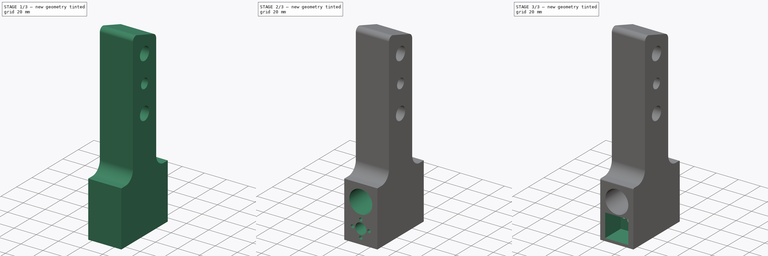
[diagram: build sequence overview — one tinted view per stage of 3, left to right]
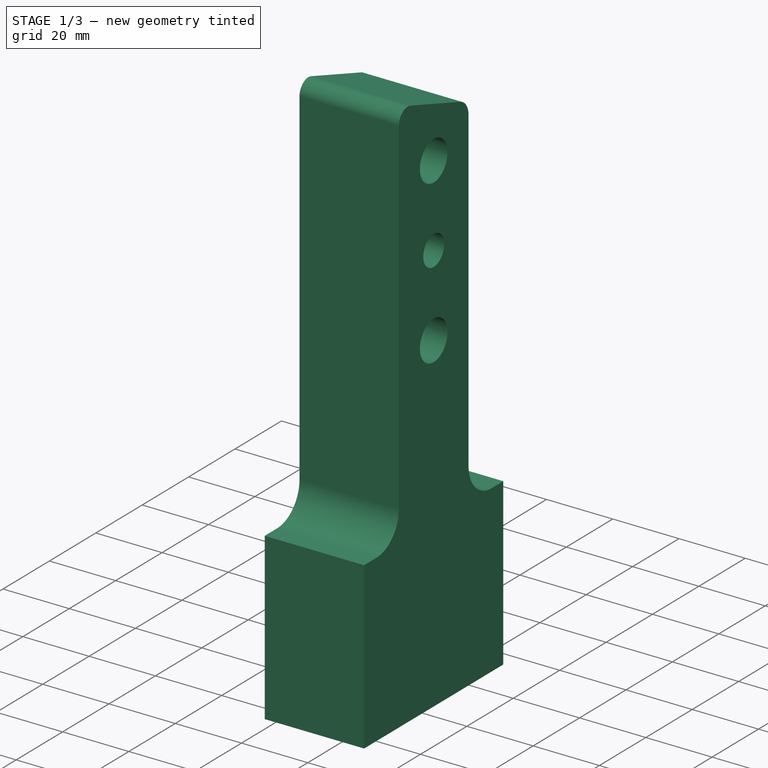
[diagram: stage 1 of 3 — iso view after this stage's code; geometry added in this stage tinted green]
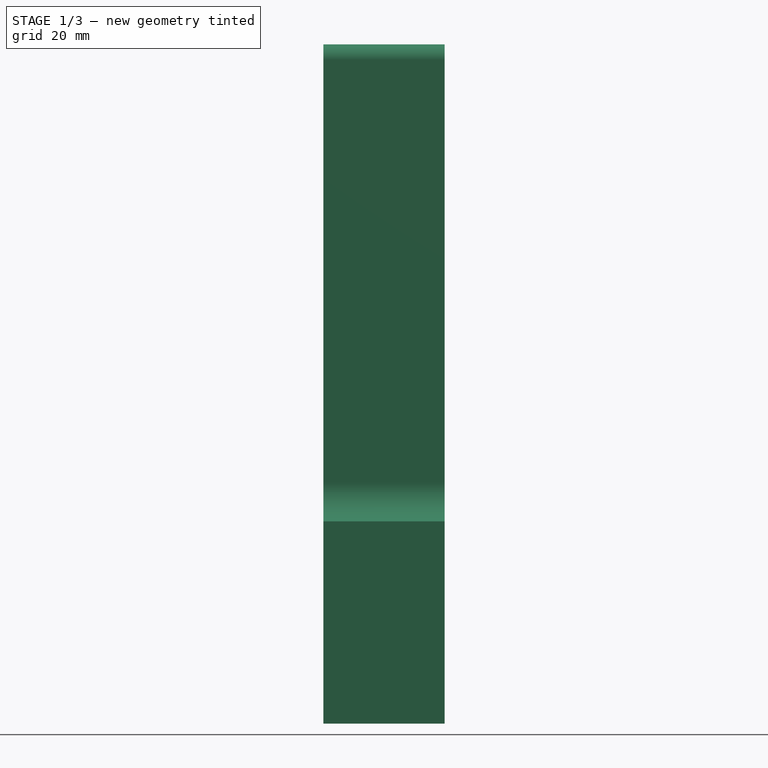
[diagram: stage 1 of 3 — front view after this stage's code; geometry added in this stage tinted green]
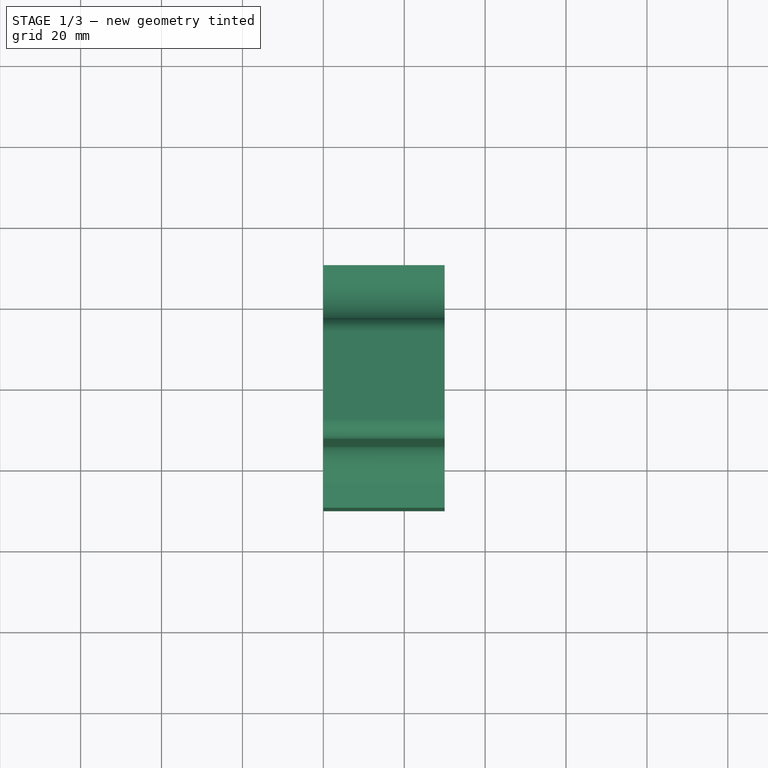
[diagram: stage 1 of 3 — top view after this stage's code; geometry added in this stage tinted green]
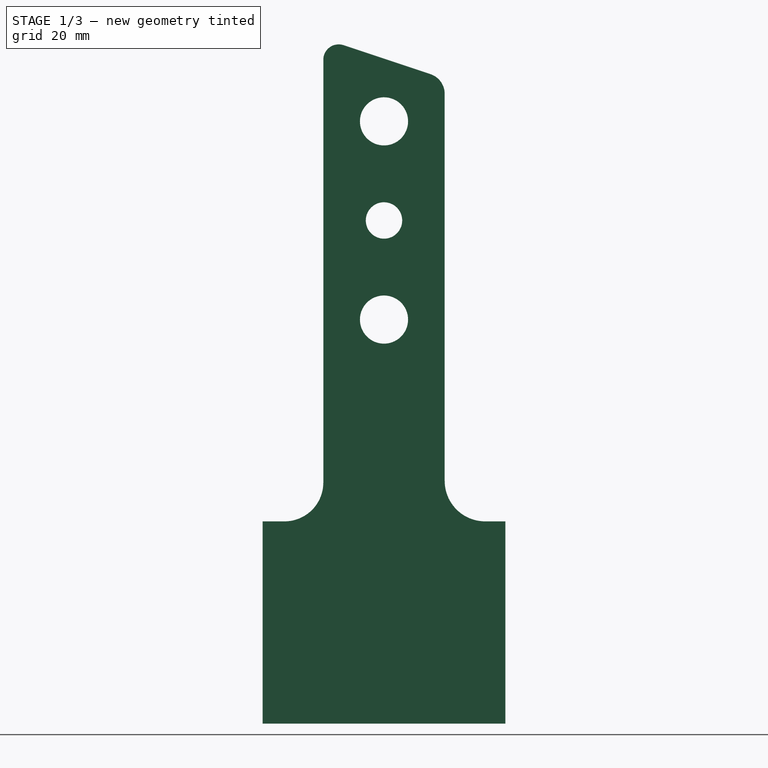
[diagram: stage 1 of 3 — right view after this stage's code; geometry added in this stage tinted green]
FCSTD DOCUMENT  (FreeCAD 0.18R4 (GitTag))
Label: axe-y-v2
License: All rights reserved
LicenseURL: http://en.wikipedia.org/wiki/All_rights_reserved
objects: Sketcher::SketchObject×4, PartDesign::Pocket×3, PartDesign::Pad×1, PartDesign::Fillet×1, PartDesign::Body×1
note: 14 computed .brp shape members not serialized (recipe doc carries the construction recipe); baked Part::Feature solids carry a one-line shape summary decoded from their .brp

FEATURE [Sketcher::SketchObject] Sketch
  MapMode = 5
  Placement = pos=(0,0,0) rot=(0.57735,0.57735,0.57735;2.0944rad)
  Support = -> [YZ_Plane]
  sketch-geometry (22):
    g0: LineSegment [constr] StartX=-15 StartY=45 StartZ=0 EndX=15 EndY=45 EndZ=0
    g1: LineSegment [constr] StartX=15 StartY=45 StartZ=0 EndX=15 EndY=-45 EndZ=0
    g2: LineSegment [constr] StartX=15 StartY=-45 StartZ=0 EndX=-15 EndY=-45 EndZ=0
    g3: LineSegment [constr] StartX=-15 StartY=-45 StartZ=0 EndX=-15 EndY=45 EndZ=0
    g4: LineSegment [constr] StartX=-1e-16 StartY=45 StartZ=0 EndX=-1e-16 EndY=-45 EndZ=0
    g5: Circle CenterX=-1e-16 CenterY=24.5 CenterZ=0 NormalX=0 NormalY=0 NormalZ=1 AngleXU=0 Radius=5.95
    g6: Circle CenterX=-1e-16 CenterY=-24.5 CenterZ=0 NormalX=0 NormalY=0 NormalZ=1 AngleXU=0 Radius=5.95
    g7: LineSegment StartX=-15 StartY=39.738 StartZ=0 EndX=-15 EndY=-45 EndZ=0
    g8: LineSegment StartX=-15 StartY=-45 StartZ=0 EndX=-15 EndY=-64.7958 EndZ=0
    g9: LineSegment StartX=-24.5874 StartY=-74.3831 StartZ=0 EndX=-30 EndY=-74.3831 EndZ=0
    g10: LineSegment StartX=-30 StartY=-74.3831 StartZ=0 EndX=-30 EndY=-124.383 EndZ=0
    g11: LineSegment StartX=-30 StartY=-124.383 StartZ=0 EndX=30 EndY=-124.383 EndZ=0
    g12: LineSegment StartX=30 StartY=-124.383 StartZ=0 EndX=30 EndY=-74.3831 EndZ=0
    g13: LineSegment StartX=30 StartY=-74.3831 StartZ=0 EndX=25.0052 EndY=-74.3831 EndZ=0
    g14: LineSegment StartX=11.4874 StartY=36.1709 StartZ=0 EndX=-10.0081 EndY=43.336 EndZ=0
    g15: LineSegment StartX=15 StartY=31.2974 StartZ=0 EndX=15 EndY=-45 EndZ=0
    g16: LineSegment StartX=15 StartY=-45 StartZ=0 EndX=15 EndY=-64.3779 EndZ=0
    g17: ArcOfCircle CenterX=-24.5874 CenterY=-64.7958 CenterZ=0 NormalX=0 NormalY=0 NormalZ=1 AngleXU=0 Radius=9.58738 StartAngle=4.71239 EndAngle=6.28319
    g18: ArcOfCircle CenterX=25.0052 CenterY=-64.3779 CenterZ=0 NormalX=0 NormalY=0 NormalZ=1 AngleXU=0 Radius=10.0052 StartAngle=3.14159 EndAngle=4.71239
    g19: ArcOfCircle CenterX=-11.2074 CenterY=39.738 CenterZ=0 NormalX=0 NormalY=0 NormalZ=1 AngleXU=0 Radius=3.79262 StartAngle=1.24905 EndAngle=3.14159
    g20: ArcOfCircle CenterX=9.86288 CenterY=31.2974 CenterZ=0 NormalX=0 NormalY=0 NormalZ=1 AngleXU=0 Radius=5.13712 StartAngle=0 EndAngle=1.24905
    g21: Circle CenterX=0 CenterY=0 CenterZ=0 NormalX=0 NormalY=0 NormalZ=1 AngleXU=0 Radius=4.5
  constraints (48):
    c: Coincident(g0,g1)
    c: Coincident(g1,g2)
    c: Coincident(g2,g3)
    c: Coincident(g3,g0)
    c: Horizontal(g0)
    c: Horizontal(g2)
    c: Vertical(g1)
    c: Vertical(g3)
    c: DistanceX(g0,g0) = 30
    c: DistanceY(g1,g1) = 90
    c: Symmetric(g0,g2,g-1)
    c: Vertical(g4)
    c: Symmetric(g0,g0,g4)
    c: PointOnObject(g4,g2)
    c: Equal(g5,g6)
    c: Diameter(g5) = 11.9
    c: DistanceY(g-1,g5) = 24.5
    c: DistanceY(g6,g-1) = 24.5
    c: PointOnObject(g5,g4)
    c: PointOnObject(g6,g4)
    c: Coincident(g7,g8)
    c: Coincident(g9,g10)
    c: Coincident(g10,g11)
    c: Coincident(g11,g12)
    c: Coincident(g12,g13)
    c: Equal(g10,g12)
    c: Vertical(g10)
    c: Vertical(g12)
    c: DistanceY(g12,g12) = 50
    c: Coincident(g15,g16)
    c: Vertical(g8)
    c: Vertical(g16)
    c: DistanceX(g11,g11) = 60
    c: Horizontal(g9)
    c: Horizontal(g13)
    c: Symmetric(g11,g10,g-2)
    c: Coincident(g7,g2)
    c: Coincident(g15,g1)
    c: Tangent(g9,g17) = 1.5708
    c: Tangent(g8,g17) = 1.5708
    c: Tangent(g16,g18) = -1.5708
    c: Tangent(g13,g18) = 1.5708
    c: Tangent(g7,g19) = -1.5708
    c: Tangent(g14,g19) = -1.5708
    c: Tangent(g14,g20) = -1.5708
    c: Tangent(g15,g20) = 1.5708
    c: Diameter(g21) = 9
    c: Coincident(g21,g-1)
FEATURE [PartDesign::Pad] Pad
  Length = 30
  Length2 = 100
  Placement = pos=(0,0,0) rot=(0.57735,0.57735,0.57735;2.0944rad)
  Profile = -> Sketch
  Type = 0
FEATURE [Sketcher::SketchObject] Sketch001
  MapMode = 5
  Placement = pos=(1e-16,0,0) rot=(0.57735,0.57735,-0.57735;4.18879rad)
  Support = -> [Pad]
  sketch-geometry (1):
    g0: Circle CenterX=0 CenterY=0 CenterZ=0 NormalX=0 NormalY=0 NormalZ=1 AngleXU=0 Radius=10.85
  constraints (2):
    c: Coincident(g0,g-1)
    c: Diameter(g0) = 21.7
FEATURE [PartDesign::Pocket] Pocket
  BaseFeature = -> Pad
  Length = 8
  Length2 = 100
  Placement = pos=(0,0,0) rot=(0.57735,0.57735,0.57735;2.0944rad)
  Profile = -> Sketch001
  Type = 0
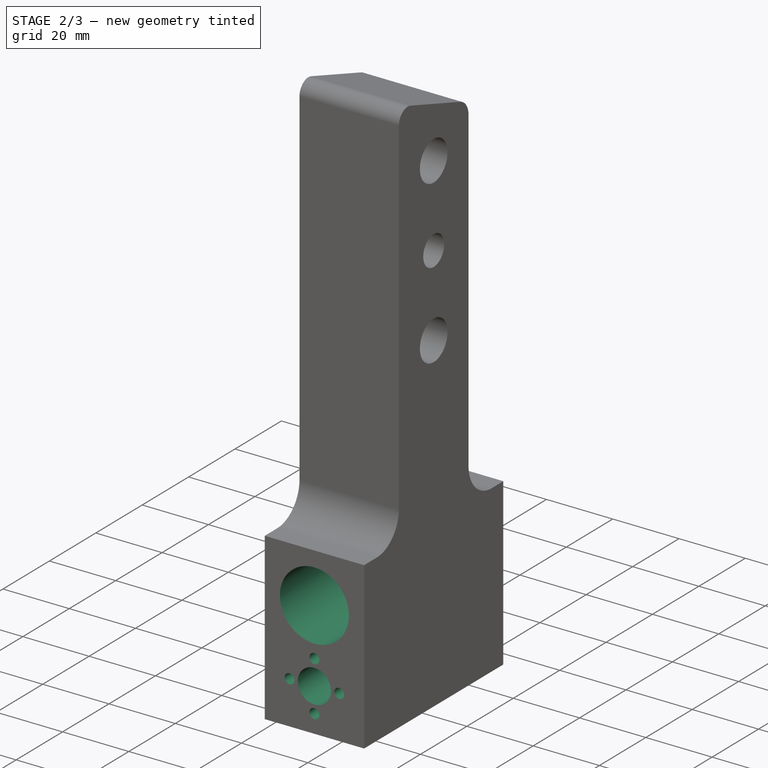
[diagram: stage 2 of 3 — iso view after this stage's code; geometry added in this stage tinted green]
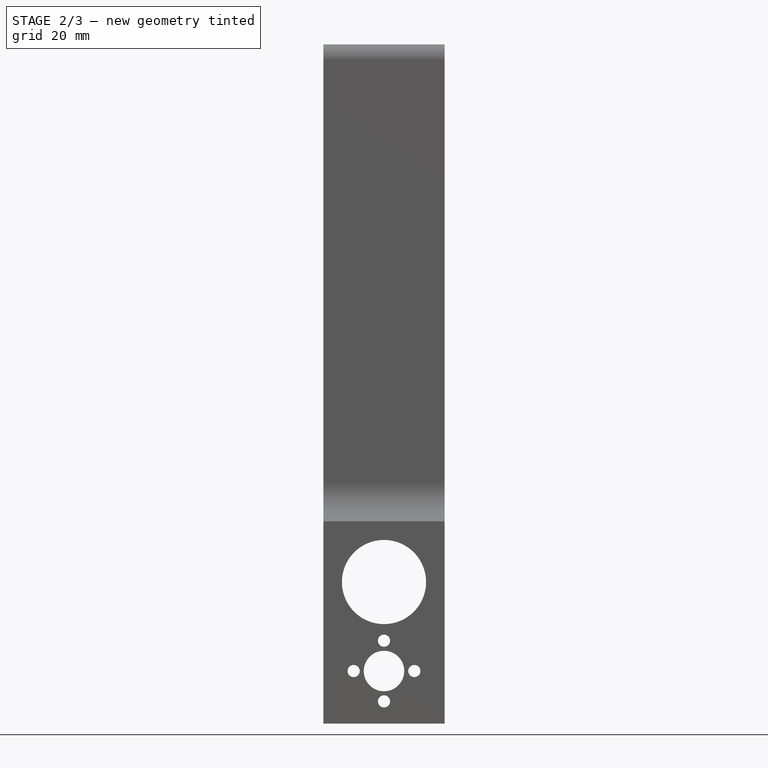
[diagram: stage 2 of 3 — front view after this stage's code; geometry added in this stage tinted green]
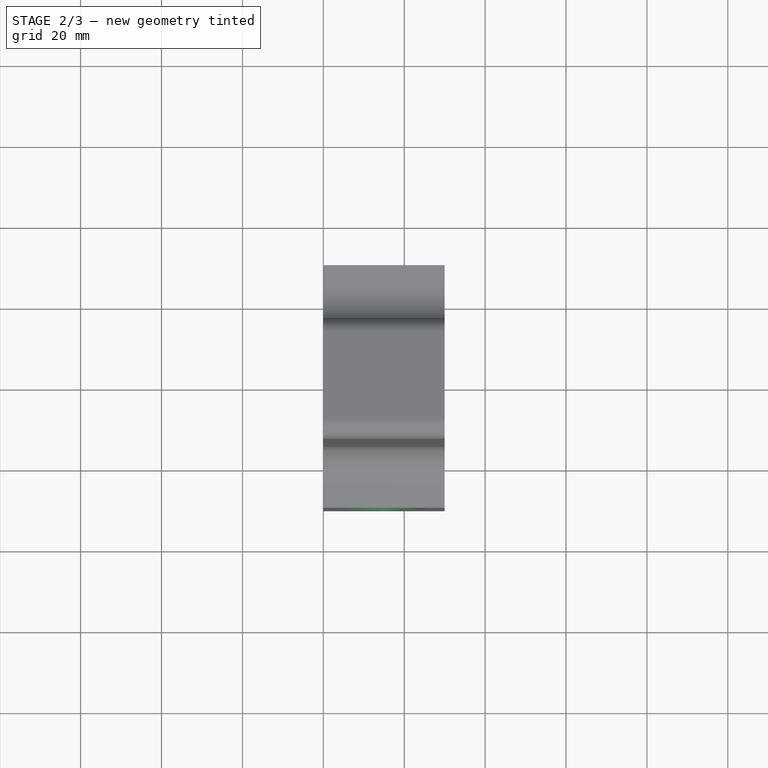
[diagram: stage 2 of 3 — top view after this stage's code; geometry added in this stage tinted green]
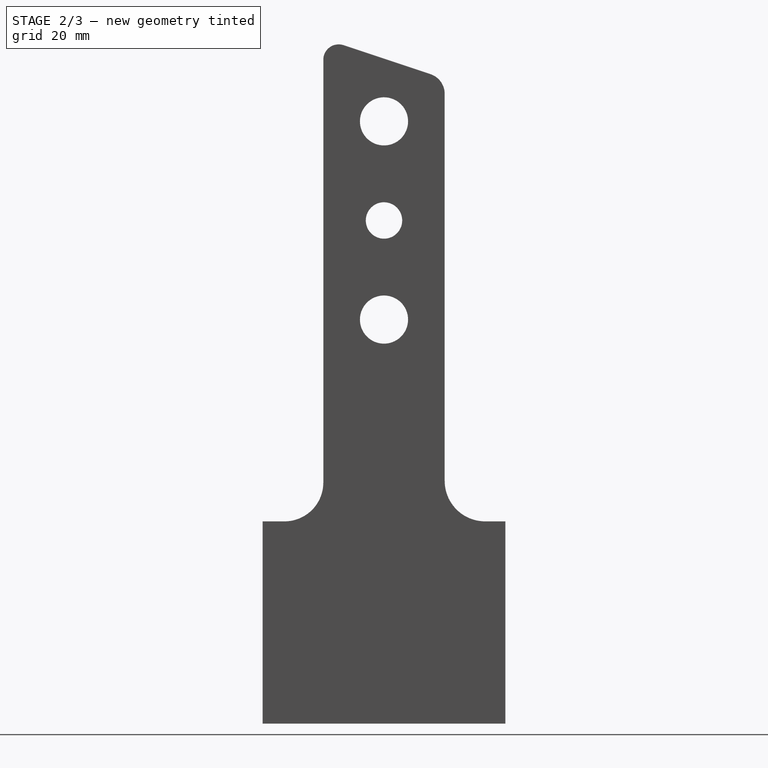
[diagram: stage 2 of 3 — right view after this stage's code; geometry added in this stage tinted green]
FEATURE [Sketcher::SketchObject] Sketch002
  ExternalGeometry = -> [Pocket]
  MapMode = 5
  Placement = pos=(-1.32e-14,-30,6.6e-15) rot=(-0.57735,-0.57735,0.57735;4.18879rad)
  Support = -> [Pocket]
  sketch-geometry (8):
    g0: LineSegment [constr] StartX=72.1621 StartY=14.0376 StartZ=0 EndX=72.1621 EndY=14.1691 EndZ=0
    g1: LineSegment [constr] StartX=74.3831 StartY=15 StartZ=0 EndX=124.383 EndY=15 EndZ=0
    g2: Circle CenterX=89.3831 CenterY=15 CenterZ=0 NormalX=0 NormalY=0 NormalZ=1 AngleXU=0 Radius=10.4
    g3: Circle CenterX=111.383 CenterY=15 CenterZ=0 NormalX=0 NormalY=0 NormalZ=1 AngleXU=0 Radius=5
    g4: Circle CenterX=111.383 CenterY=22.5 CenterZ=0 NormalX=0 NormalY=0 NormalZ=1 AngleXU=0 Radius=1.5
    g5: Circle CenterX=103.883 CenterY=15 CenterZ=0 NormalX=0 NormalY=0 NormalZ=1 AngleXU=0 Radius=1.5
    g6: Circle CenterX=111.383 CenterY=7.5 CenterZ=0 NormalX=0 NormalY=0 NormalZ=1 AngleXU=0 Radius=1.5
    g7: Circle CenterX=118.883 CenterY=15 CenterZ=0 NormalX=0 NormalY=0 NormalZ=1 AngleXU=0 Radius=1.5
  constraints (22):
    c: Vertical(g0)
    c: Horizontal(g1)
    c: Symmetric(g-5,g-6,g1)
    c: PointOnObject(g1,g-4)
    c: Equal(g4,g5)
    c: Equal(g5,g6)
    c: Equal(g6,g7)
    c: Diameter(g4) = 3
    c: DistanceX(g4,g3) = 0
    c: DistanceY(g3,g4) = 7.5
    c: DistanceX(g3,g6) = 0
    c: DistanceY(g6,g3) = 7.5
    c: DistanceY(g3,g7) = 0
    c: DistanceY(g3,g5) = 0
    c: DistanceX(g3,g7) = 7.5
    c: DistanceX(g5,g3) = 7.5
    c: Diameter(g3) = 10
    c: Diameter(g2) = 20.8
    c: PointOnObject(g3,g1)
    c: PointOnObject(g2,g1)
    c: DistanceX(g2,g3) = 22
    c: DistanceX(g-5,g2) = 15
FEATURE [PartDesign::Pocket] Pocket001
  BaseFeature = -> Pocket
  Length = 60
  Length2 = 100
  Placement = pos=(0,0,0) rot=(0.57735,0.57735,0.57735;2.0944rad)
  Profile = -> Sketch002
  Type = 0
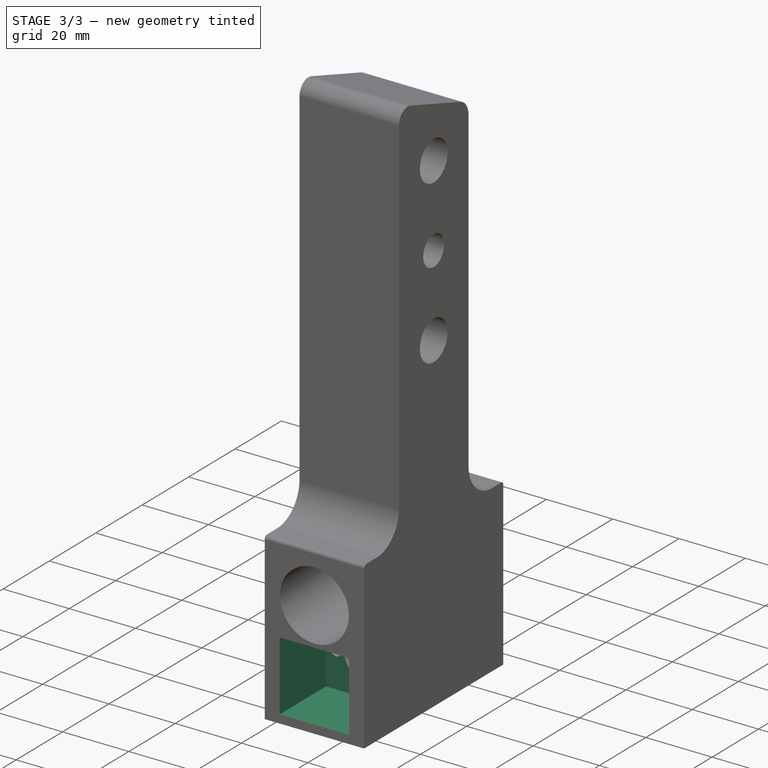
[diagram: stage 3 of 3 — iso view after this stage's code; geometry added in this stage tinted green]
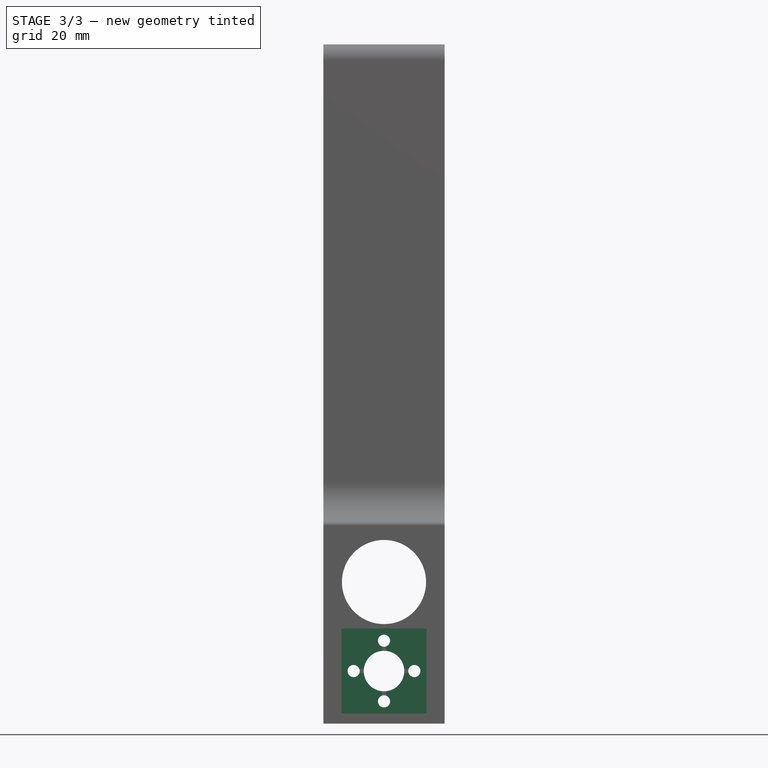
[diagram: stage 3 of 3 — front view after this stage's code; geometry added in this stage tinted green]
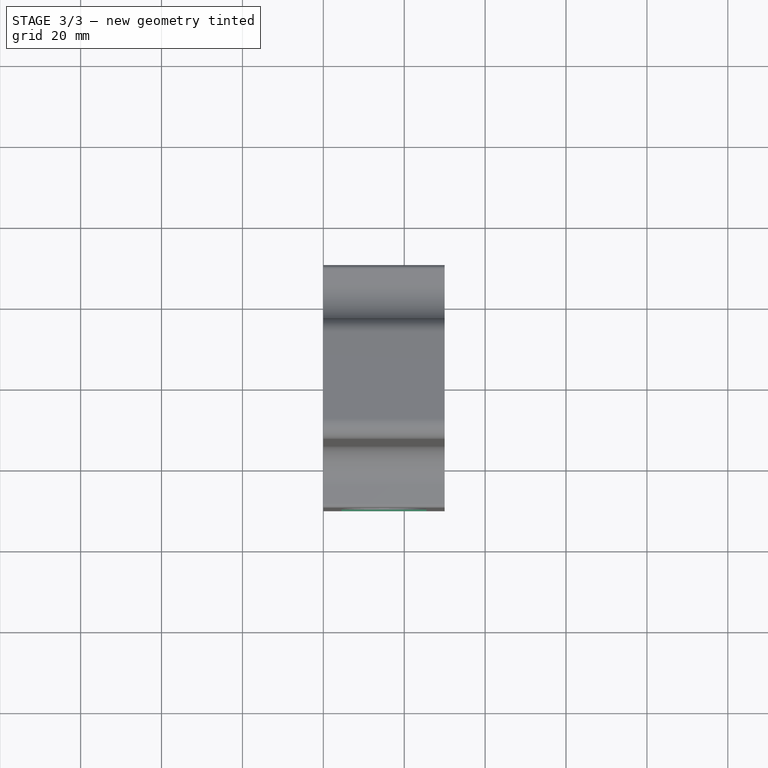
[diagram: stage 3 of 3 — top view after this stage's code; geometry added in this stage tinted green]
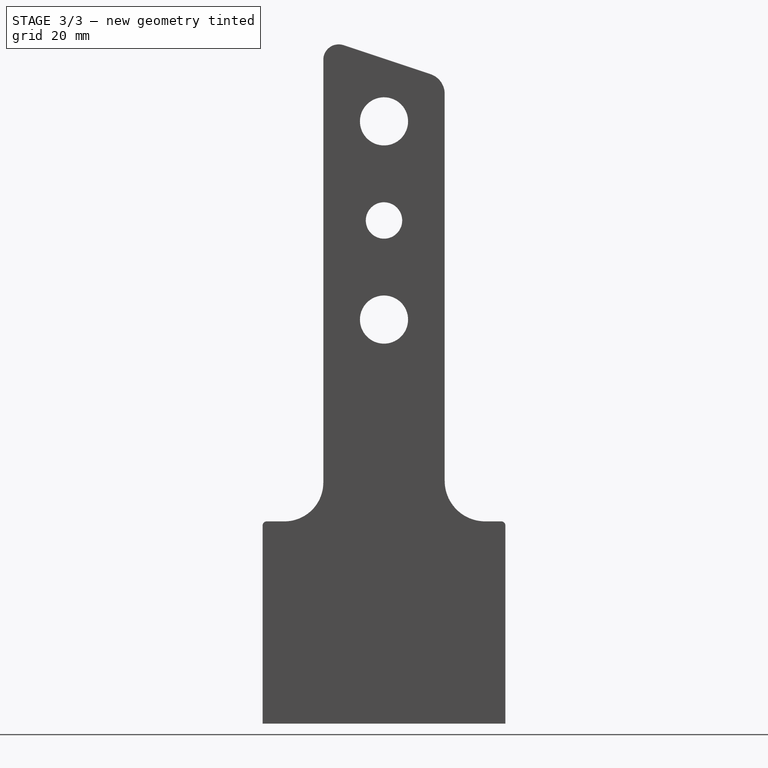
[diagram: stage 3 of 3 — right view after this stage's code; geometry added in this stage tinted green]
FEATURE [Sketcher::SketchObject] Sketch003
  ExternalGeometry = -> [Pocket001]
  MapMode = 5
  Placement = pos=(-1.49e-14,-30,6.6e-15) rot=(-0.57735,-0.57735,0.57735;4.18879rad)
  Support = -> [Pocket001]
  sketch-geometry (4):
    g0: LineSegment StartX=100.883 StartY=25.5 StartZ=0 EndX=121.883 EndY=25.5 EndZ=0
    g1: LineSegment StartX=121.883 StartY=25.5 StartZ=0 EndX=121.883 EndY=4.5 EndZ=0
    g2: LineSegment StartX=121.883 StartY=4.5 StartZ=0 EndX=100.883 EndY=4.5 EndZ=0
    g3: LineSegment StartX=100.883 StartY=4.5 StartZ=0 EndX=100.883 EndY=25.5 EndZ=0
  constraints (11):
    c: Coincident(g0,g1)
    c: Coincident(g1,g2)
    c: Coincident(g2,g3)
    c: Coincident(g3,g0)
    c: Horizontal(g0)
    c: Horizontal(g2)
    c: Vertical(g1)
    c: Vertical(g3)
    c: Equal(g0,g1)
    c: DistanceY(g1,g1) = 21
    c: Symmetric(g0,g1,g-3)
FEATURE [PartDesign::Pocket] Pocket002
  BaseFeature = -> Pocket001
  Length = 20
  Length2 = 100
  Placement = pos=(0,0,0) rot=(0.57735,0.57735,0.57735;2.0944rad)
  Profile = -> Sketch003
  Type = 0
FEATURE [PartDesign::Fillet] Fillet
  Base = -> Pocket002 [Edge54,Edge43]
  BaseFeature = -> Pocket002
  Placement = pos=(0,0,0) rot=(0.57735,0.57735,0.57735;2.0944rad)
  Radius = 1
FEATURE [PartDesign::Body] Body  label="Axe-Y-Left"
  Group = -> [Sketch,Pad,Sketch001,Pocket,Sketch002,Pocket001,Sketch003,Pocket002,Fillet]
  Origin = -> Origin
  Tip = -> Fillet
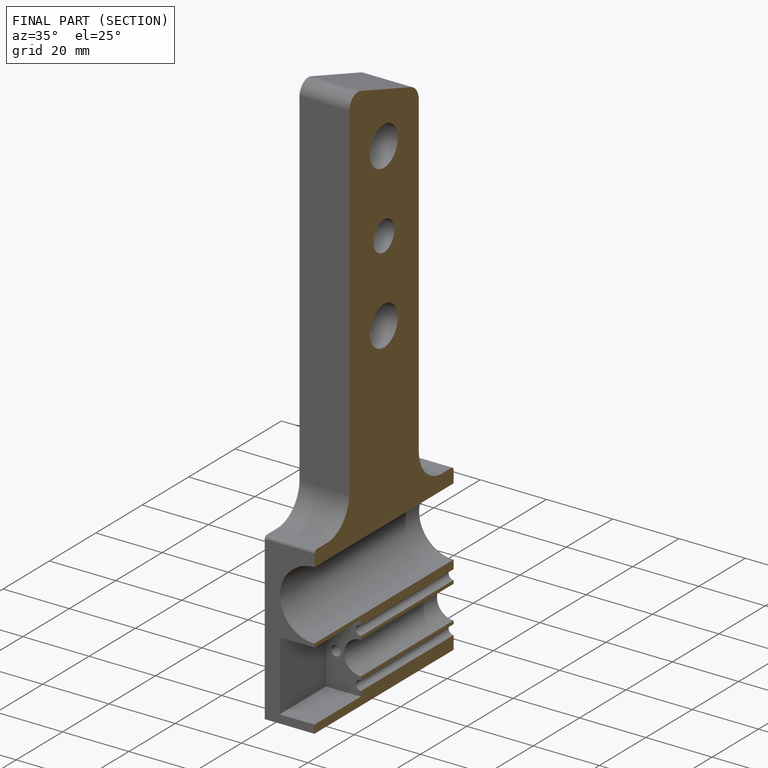
[diagram: finished part — half-section view (interior)]
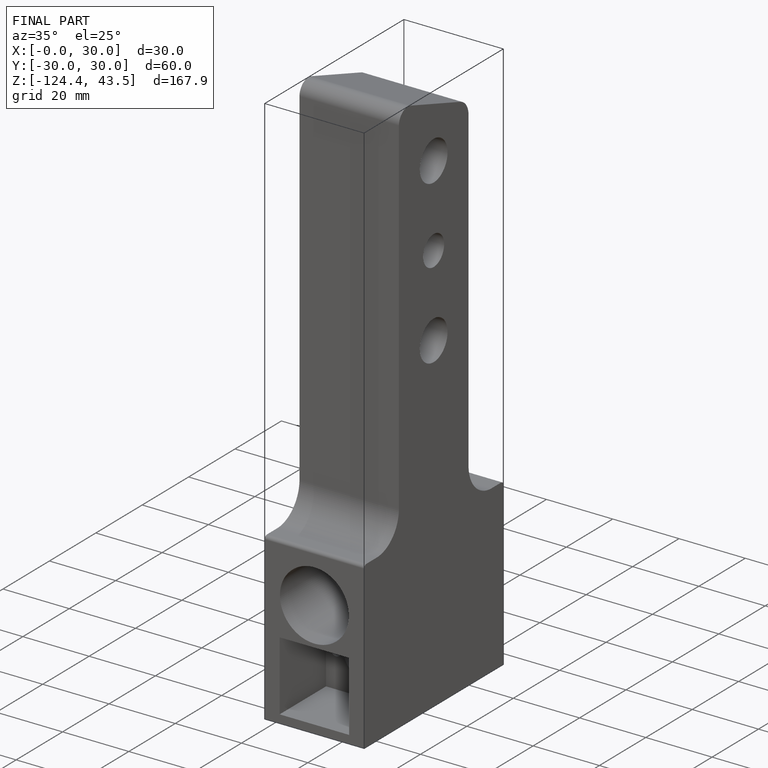
[diagram: finished part — iso view with bounding-box wireframe]
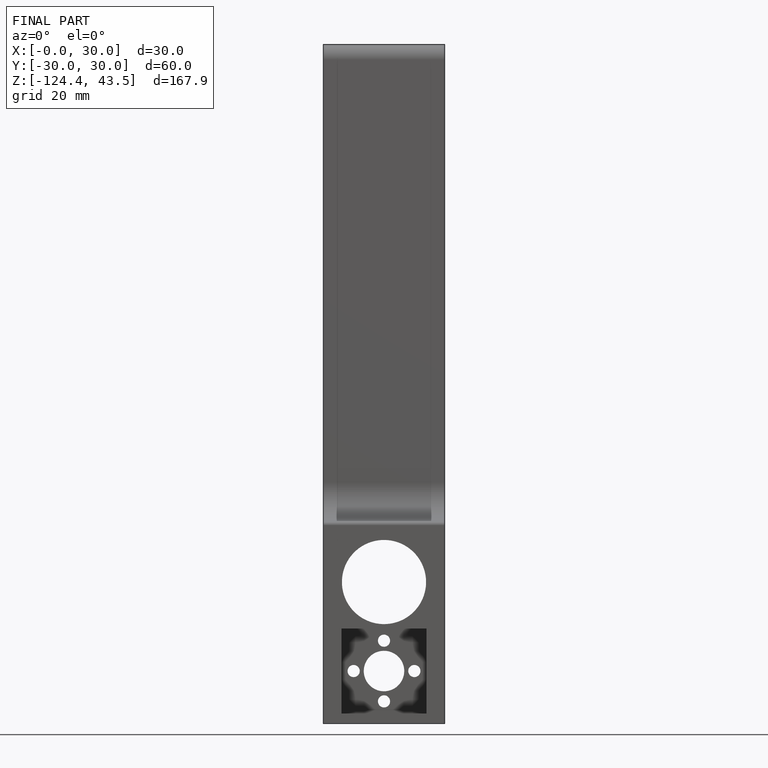
[diagram: finished part — front view with bounding-box wireframe]
